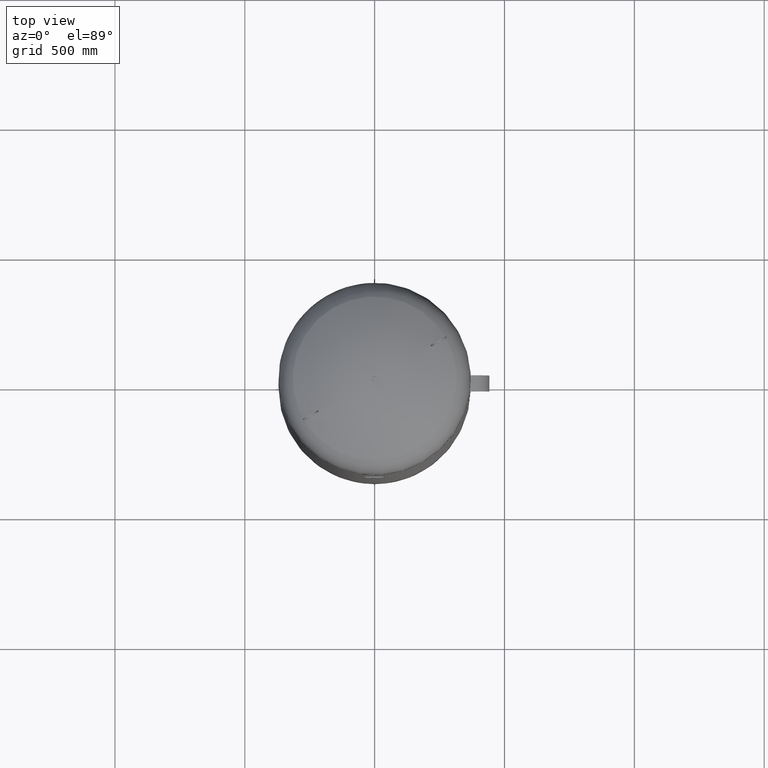
[diagram: clean part render]
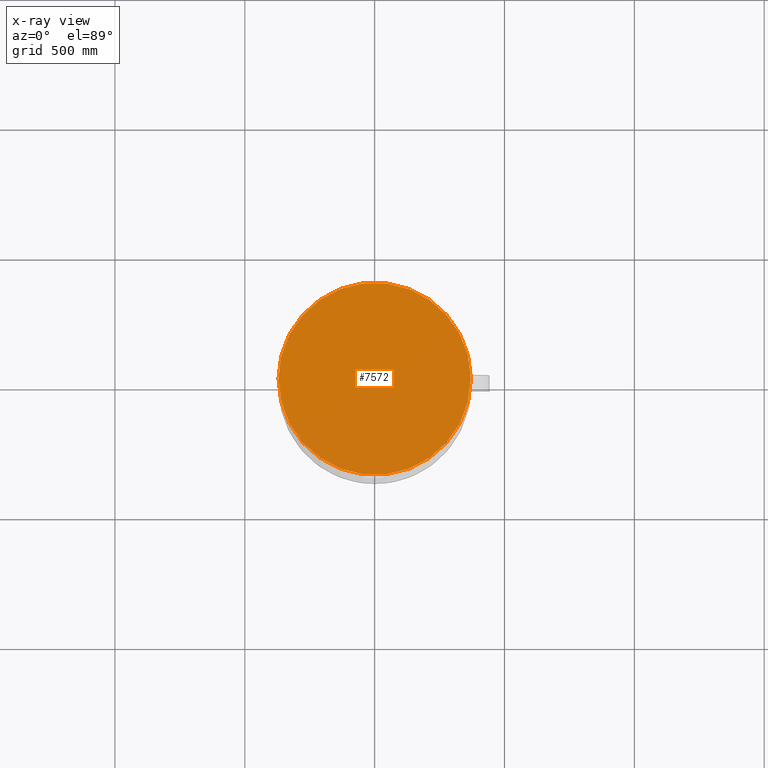
[diagram: x-ray — body ghosted, one internal face saturated and labeled with its STEP entity id]
A machine part, top view, then the same camera in x-ray: the body is ghosted and one INTERNAL B-rep face — a face not visible from any outside direction — is saturated and labeled: STEP entity #7572.
In plain terms, the highlighted planar face has unit normal (0, 0, 1).
Its self-contained STEP definition (entity closure, byte-faithful):
#7232=CARTESIAN_POINT('',(370.0,0.0,2375.0));
#7233=VERTEX_POINT('',#7232);
#7242=CARTESIAN_POINT('',(-369.999999999999720,-4.531044E-014,2375.0));
#7243=VERTEX_POINT('',#7242);
#7244=CARTESIAN_POINT('',(1.668796E-014,0.0,2375.0));
#7245=DIRECTION('',(0.0,0.0,1.0));
#7246=DIRECTION('',(1.0,0.0,0.0));
#7247=AXIS2_PLACEMENT_3D('',#7244,#7245,#7246);
#7248=CIRCLE('',#7247,370.0);
#7249=EDGE_CURVE('',#7243,#7233,#7248,.T.);
#7553=CARTESIAN_POINT('',(1.668796E-014,0.0,2375.0));
#7554=DIRECTION('',(0.0,0.0,1.0));
#7555=DIRECTION('',(1.0,0.0,0.0));
#7556=AXIS2_PLACEMENT_3D('',#7553,#7554,#7555);
#7557=CIRCLE('',#7556,370.0);
#7558=EDGE_CURVE('',#7233,#7243,#7557,.T.);
#7563=CARTESIAN_POINT('',(185.0,0.0,2375.0));
#7564=DIRECTION('',(0.0,0.0,1.0));
#7565=DIRECTION('',(1.0,0.0,0.0));
#7566=AXIS2_PLACEMENT_3D('',#7563,#7564,#7565);
#7567=PLANE('',#7566);
#7568=ORIENTED_EDGE('',*,*,#7558,.T.);
#7569=ORIENTED_EDGE('',*,*,#7249,.T.);
#7570=EDGE_LOOP('',(#7568,#7569));
#7571=FACE_OUTER_BOUND('',#7570,.T.);
#7572=ADVANCED_FACE('',(#7571),#7567,.T.);